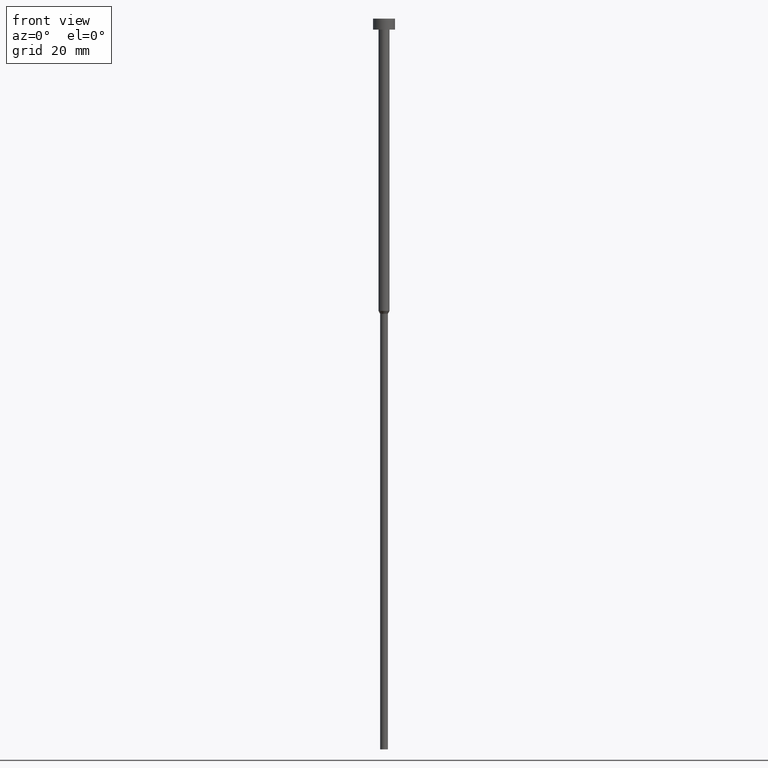
[diagram: clean part render]
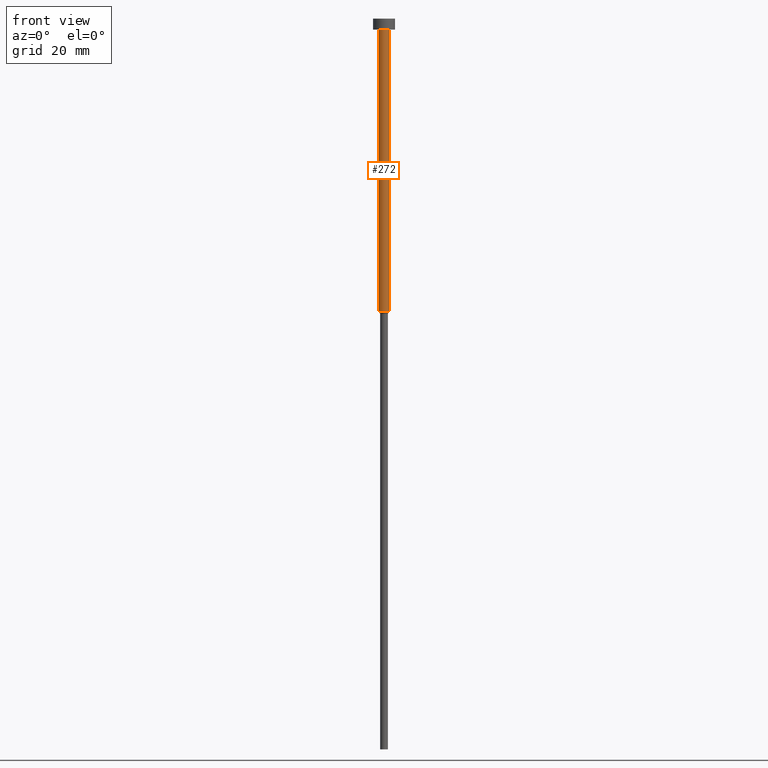
[diagram: same view with one face highlighted and labeled with its STEP entity id]
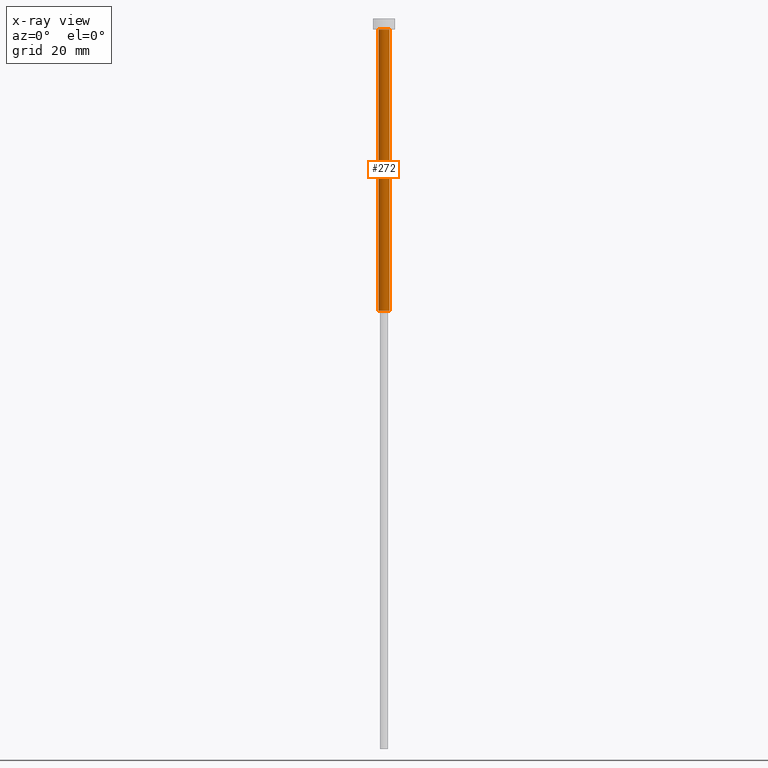
[diagram: x-ray of the same camera — body ghosted, the highlighted face saturated]
A machine part, front view. The second image highlights one B-rep face of the part: STEP entity #272.
The next image is the same camera in x-ray: the body ghosted, the highlighted face saturated — about 0% of this face is hidden behind the body in this view.
In plain terms, the highlighted cylindrical surface (edge-blend (fillet) strip) has radius 1.5 mm, axis along (-0, -0, 1).
Its self-contained STEP definition (entity closure, byte-faithful):
#6 = EDGE_CURVE ( 'NONE', #292, #20, #126, .T. ) ;
#9 = VERTEX_POINT ( 'NONE', #264 ) ;
#20 = VERTEX_POINT ( 'NONE', #148 ) ;
#31 = AXIS2_PLACEMENT_3D ( 'NONE', #258, #36, #261 ) ;
#34 = EDGE_CURVE ( 'NONE', #315, #9, #151, .T. ) ;
#36 = DIRECTION ( 'NONE',  ( -0.000000000000000000, -0.000000000000000000, 1.000000000000000000 ) ) ;
#37 = DIRECTION ( 'NONE',  ( -0.000000000000000000, -0.000000000000000000, 1.000000000000000000 ) ) ;
#42 = CARTESIAN_POINT ( 'NONE',  ( 0.000000000000000000, 0.000000000000000000, -3.000000000000000888 ) ) ;
#54 = EDGE_CURVE ( 'NONE', #315, #292, #302, .T. ) ;
#58 = DIRECTION ( 'NONE',  ( -0.000000000000000000, -0.000000000000000000, 1.000000000000000000 ) ) ;
#59 = CARTESIAN_POINT ( 'NONE',  ( -1.500000000000000000, 1.836970198721029934E-16, -80.00000000000000000 ) ) ;
#93 = DIRECTION ( 'NONE',  ( 1.000000000000000000, 0.000000000000000000, 0.000000000000000000 ) ) ;
#95 = CARTESIAN_POINT ( 'NONE',  ( 1.500000000000000000, 0.000000000000000000, 0.000000000000000000 ) ) ;
#100 = ORIENTED_EDGE ( 'NONE', *, *, #6, .F. ) ;
#102 = EDGE_CURVE ( 'NONE', #9, #20, #339, .T. ) ;
#116 = CARTESIAN_POINT ( 'NONE',  ( 0.000000000000000000, 0.000000000000000000, 0.000000000000000000 ) ) ;
#124 = ORIENTED_EDGE ( 'NONE', *, *, #54, .F. ) ;
#126 = CIRCLE ( 'NONE', #320, 1.500000000000000000 ) ;
#143 = CYLINDRICAL_SURFACE ( 'NONE', #203, 1.500000000000000000 ) ;
#148 = CARTESIAN_POINT ( 'NONE',  ( 1.500000000000000000, 0.000000000000000000, -3.000000000000000888 ) ) ;
#151 = CIRCLE ( 'NONE', #31, 1.500000000000000000 ) ;
#156 = DIRECTION ( 'NONE',  ( 1.000000000000000000, 0.000000000000000000, 0.000000000000000000 ) ) ;
#166 = CARTESIAN_POINT ( 'NONE',  ( -1.500000000000000000, 1.836970198721029934E-16, 0.000000000000000000 ) ) ;
#171 = CARTESIAN_POINT ( 'NONE',  ( -1.500000000000000000, 1.836970198721029934E-16, -3.000000000000000888 ) ) ;
#176 = ORIENTED_EDGE ( 'NONE', *, *, #102, .T. ) ;
#187 = ORIENTED_EDGE ( 'NONE', *, *, #34, .T. ) ;
#189 = DIRECTION ( 'NONE',  ( -0.000000000000000000, -0.000000000000000000, 1.000000000000000000 ) ) ;
#203 = AXIS2_PLACEMENT_3D ( 'NONE', #116, #58, #93 ) ;
#210 = FACE_OUTER_BOUND ( 'NONE', #343, .T. ) ;
#246 = VECTOR ( 'NONE', #37, 1000.000000000000000 ) ;
#258 = CARTESIAN_POINT ( 'NONE',  ( 0.000000000000000000, 0.000000000000000000, -80.00000000000000000 ) ) ;
#261 = DIRECTION ( 'NONE',  ( 1.000000000000000000, 0.000000000000000000, 0.000000000000000000 ) ) ;
#264 = CARTESIAN_POINT ( 'NONE',  ( 1.500000000000000000, 0.000000000000000000, -80.00000000000000000 ) ) ;
#272 = ADVANCED_FACE ( 'NONE', ( #210 ), #143, .T. ) ;
#288 = DIRECTION ( 'NONE',  ( -0.000000000000000000, -0.000000000000000000, 1.000000000000000000 ) ) ;
#292 = VERTEX_POINT ( 'NONE', #171 ) ;
#295 = VECTOR ( 'NONE', #189, 1000.000000000000000 ) ;
#302 = LINE ( 'NONE', #166, #295 ) ;
#315 = VERTEX_POINT ( 'NONE', #59 ) ;
#320 = AXIS2_PLACEMENT_3D ( 'NONE', #42, #288, #156 ) ;
#339 = LINE ( 'NONE', #95, #246 ) ;
#343 = EDGE_LOOP ( 'NONE', ( #124, #187, #176, #100 ) ) ;